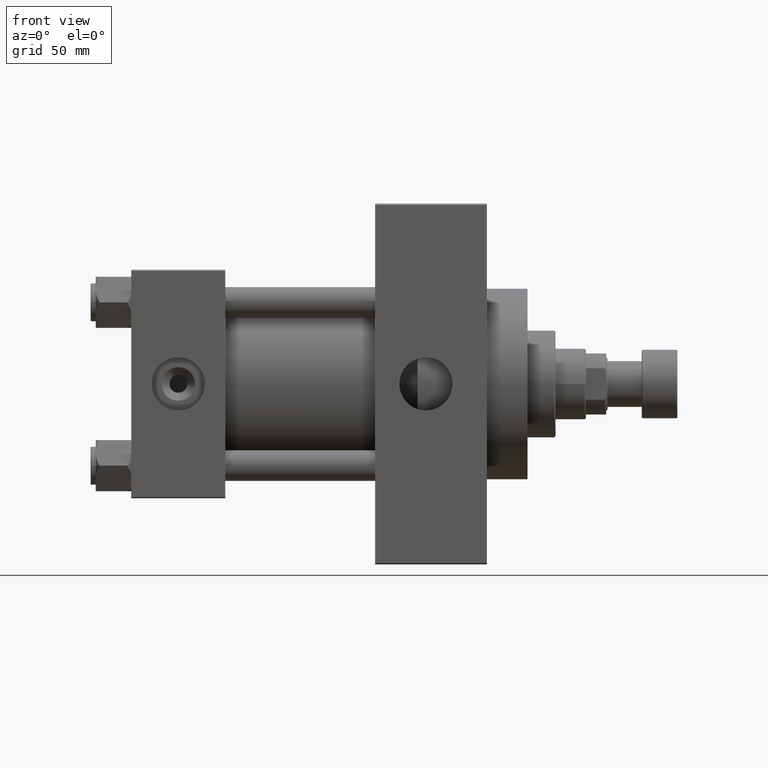
[diagram: clean part render]
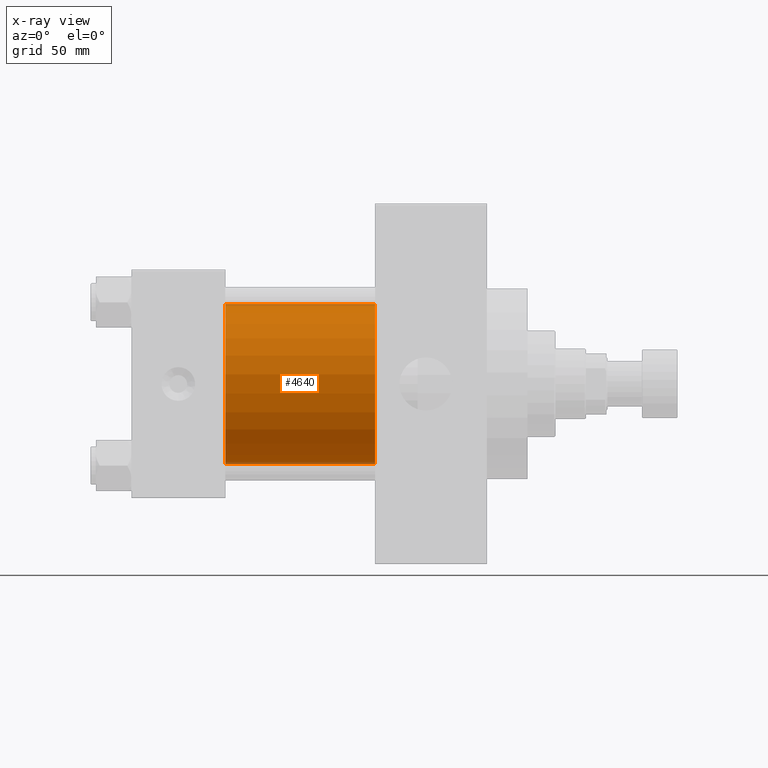
[diagram: x-ray — body ghosted, one internal face saturated and labeled with its STEP entity id]
A machine part, front view, then the same camera in x-ray: the body is ghosted and one INTERNAL B-rep face — a face not visible from any outside direction — is saturated and labeled: STEP entity #4640.
In plain terms, the highlighted cylindrical surface (partial cylindrical patch) has radius 31.5 mm, axis along (-1, -0, -0).
Its self-contained STEP definition (entity closure, byte-faithful):
#191 = FACE_OUTER_BOUND ( 'NONE', #45662, .T. ) ;
#251 = CARTESIAN_POINT ( 'NONE',  ( 96.00000000000000000, 1.255552203348951850E-15, -31.50000000000000000 ) ) ;
#443 = DIRECTION ( 'NONE',  ( 0.000000000000000000, 0.000000000000000000, 1.000000000000000000 ) ) ;
#1514 = AXIS2_PLACEMENT_3D ( 'NONE', #8173, #34656, #443 ) ;
#2048 = CIRCLE ( 'NONE', #10011, 31.50000000000000000 ) ;
#2488 = DIRECTION ( 'NONE',  ( -1.000000000000000000, -0.000000000000000000, -0.000000000000000000 ) ) ;
#3994 = DIRECTION ( 'NONE',  ( -1.000000000000000000, -0.000000000000000000, -0.000000000000000000 ) ) ;
#4640 = ADVANCED_FACE ( 'NONE', ( #191 ), #27166, .F. ) ;
#5887 = CARTESIAN_POINT ( 'NONE',  ( 96.00000000000000000, -2.602085213965210642E-15, 0.000000000000000000 ) ) ;
#5937 = CARTESIAN_POINT ( 'NONE',  ( 96.00000000000000000, 1.255552203348951850E-15, -31.50000000000000000 ) ) ;
#8173 = CARTESIAN_POINT ( 'NONE',  ( 96.00000000000000000, -2.602085213965210642E-15, 0.000000000000000000 ) ) ;
#8183 = AXIS2_PLACEMENT_3D ( 'NONE', #34136, #46141, #38625 ) ;
#8885 = CARTESIAN_POINT ( 'NONE',  ( 37.00000000000000000, -2.602085213965210642E-15, 31.50000000000000000 ) ) ;
#9487 = CARTESIAN_POINT ( 'NONE',  ( 96.00000000000000000, -2.602085213965210642E-15, 31.50000000000000000 ) ) ;
#10011 = AXIS2_PLACEMENT_3D ( 'NONE', #5887, #44359, #24860 ) ;
#10461 = LINE ( 'NONE', #9487, #45869 ) ;
#11446 = CIRCLE ( 'NONE', #8183, 31.50000000000000000 ) ;
#12688 = CARTESIAN_POINT ( 'NONE',  ( 37.00000000000000000, 1.255552203348951850E-15, -31.50000000000000000 ) ) ;
#13092 = CARTESIAN_POINT ( 'NONE',  ( 96.00000000000000000, -2.602085213965210642E-15, 31.50000000000000000 ) ) ;
#14977 = LINE ( 'NONE', #251, #17086 ) ;
#16367 = EDGE_CURVE ( 'NONE', #41115, #20012, #11446, .T. ) ;
#17086 = VECTOR ( 'NONE', #3994, 1000.000000000000000 ) ;
#20012 = VERTEX_POINT ( 'NONE', #12688 ) ;
#23070 = ORIENTED_EDGE ( 'NONE', *, *, #39791, .F. ) ;
#24572 = ORIENTED_EDGE ( 'NONE', *, *, #16367, .F. ) ;
#24860 = DIRECTION ( 'NONE',  ( 0.000000000000000000, 0.000000000000000000, -1.000000000000000000 ) ) ;
#26597 = VERTEX_POINT ( 'NONE', #5937 ) ;
#27166 = CYLINDRICAL_SURFACE ( 'NONE', #1514, 31.50000000000000000 ) ;
#29353 = ORIENTED_EDGE ( 'NONE', *, *, #38723, .T. ) ;
#30048 = ORIENTED_EDGE ( 'NONE', *, *, #45104, .T. ) ;
#34136 = CARTESIAN_POINT ( 'NONE',  ( 37.00000000000000000, -2.602085213965210642E-15, 0.000000000000000000 ) ) ;
#34656 = DIRECTION ( 'NONE',  ( -1.000000000000000000, -0.000000000000000000, -0.000000000000000000 ) ) ;
#38625 = DIRECTION ( 'NONE',  ( 0.000000000000000000, 0.000000000000000000, -1.000000000000000000 ) ) ;
#38723 = EDGE_CURVE ( 'NONE', #26597, #20012, #14977, .T. ) ;
#39791 = EDGE_CURVE ( 'NONE', #49019, #41115, #10461, .T. ) ;
#41115 = VERTEX_POINT ( 'NONE', #8885 ) ;
#44359 = DIRECTION ( 'NONE',  ( 1.000000000000000000, 0.000000000000000000, 0.000000000000000000 ) ) ;
#45104 = EDGE_CURVE ( 'NONE', #49019, #26597, #2048, .T. ) ;
#45662 = EDGE_LOOP ( 'NONE', ( #30048, #29353, #24572, #23070 ) ) ;
#45869 = VECTOR ( 'NONE', #2488, 1000.000000000000000 ) ;
#46141 = DIRECTION ( 'NONE',  ( 1.000000000000000000, 0.000000000000000000, 0.000000000000000000 ) ) ;
#49019 = VERTEX_POINT ( 'NONE', #13092 ) ;